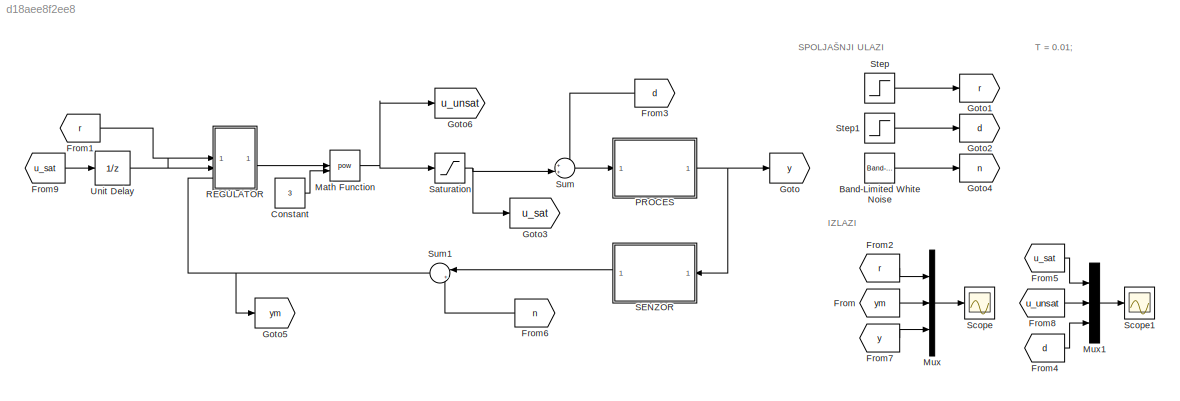
MODEL slx_d18aee8f2ee8
KIND model
CONFIG AbsTol = auto
CONFIG EnableMultiTasking = off
CONFIG FixedStep = auto
CONFIG MaxStep = auto
CONFIG MinStep = auto
CONFIG RelTol = 1e-3
CONFIG SampleTimeConstraint = Unconstrained
CONFIG SolverName = VariableStepAuto
CONFIG StartTime = 0.0
CONFIG StopTime = 40
BLOCK [Reference] Band-Limited White Noise  REF=simulink/Sources/Band-Limited
White Noise
  SourceBlock = simulink/Sources/Band-Limited\nWhite Noise
  SourceType = Band-Limited White Noise.
BLOCK [Constant] Constant
  Value = 3
BLOCK [From] From
  GotoTag = ym
BLOCK [From] From1
  GotoTag = r
BLOCK [From] From2
  GotoTag = r
BLOCK [From] From3
  GotoTag = d
BLOCK [From] From4
  GotoTag = d
BLOCK [From] From5
  GotoTag = u_sat
BLOCK [From] From6
  GotoTag = n
BLOCK [From] From7
  GotoTag = y
BLOCK [From] From8
  GotoTag = u_unsat
BLOCK [From] From9
  GotoTag = u_sat
BLOCK [Goto] Goto
  GotoTag = y
BLOCK [Goto] Goto1
  GotoTag = r
BLOCK [Goto] Goto2
  GotoTag = d
BLOCK [Goto] Goto3
  GotoTag = u_sat
BLOCK [Goto] Goto4
  GotoTag = n
BLOCK [Goto] Goto5
  GotoTag = ym
BLOCK [Goto] Goto6
  GotoTag = u_unsat
BLOCK [Math] Math Function
  Operator = pow
BLOCK [Mux] Mux
  DisplayOption = bar
  Inputs = 3
BLOCK [Mux] Mux1
  DisplayOption = bar
  Inputs = 3
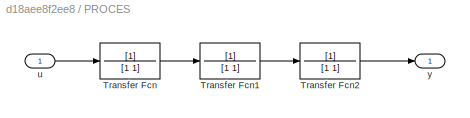
BLOCK [SubSystem] PROCES
BLOCK [TransferFcn] PROCES/Transfer Fcn
  Denominator = [1 1]
BLOCK [TransferFcn] PROCES/Transfer Fcn1
  Denominator = [1 1]
BLOCK [TransferFcn] PROCES/Transfer Fcn2
  Denominator = [1 1]
BLOCK [Inport] PROCES/u
BLOCK [Outport] PROCES/y
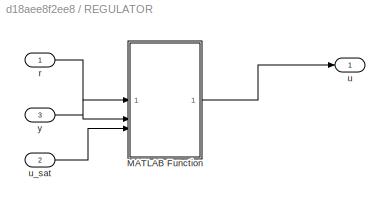
BLOCK [SubSystem] REGULATOR
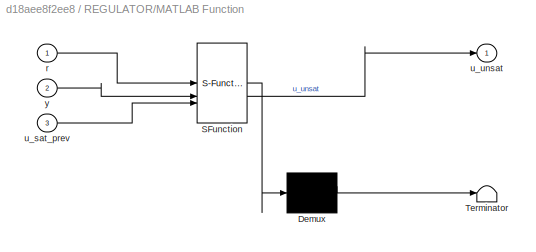
BLOCK [SubSystem] REGULATOR/MATLAB Function
  ErrorFcn = Stateflow.Translate.translate
  LibrarySourceBlock = simulink/User-Defined\nFunctions/MATLAB Function
  PermitHierarchicalResolution = ExplicitOnly
  SFBlockType = MATLAB Function
  TreatAsAtomicUnit = on
BLOCK [Demux] REGULATOR/MATLAB Function/ Demux 
  Outputs = 1
BLOCK [S-Function] REGULATOR/MATLAB Function/ SFunction 
  EnableBusSupport = on
  FunctionName = sf_sfun
  PortCounts = [3 2]
  SFcnIsStateOwnerBlock = off
  SFunctionDeploymentMode = off
  Tag = Stateflow S-Function 2
BLOCK [Terminator] REGULATOR/MATLAB Function/ Terminator 
BLOCK [Inport] REGULATOR/MATLAB Function/r
BLOCK [Inport] REGULATOR/MATLAB Function/u_sat_prev
  Port = 3
BLOCK [Outport] REGULATOR/MATLAB Function/u_unsat
BLOCK [Inport] REGULATOR/MATLAB Function/y
  Port = 2
BLOCK [Inport] REGULATOR/r
BLOCK [Outport] REGULATOR/u
BLOCK [Inport] REGULATOR/u_sat
  Port = 2
BLOCK [Inport] REGULATOR/y
  Port = 3
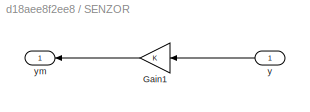
BLOCK [SubSystem] SENZOR
BLOCK [Gain] SENZOR/Gain1
BLOCK [Inport] SENZOR/y
BLOCK [Outport] SENZOR/ym
BLOCK [Saturate] Saturation
  LowerLimit = -1
  UpperLimit = 1
BLOCK [Scope] Scope
  Floating = off
  NumInputPorts = 1
  ScopeSpecificationString = Simulink.scopes.TimeScopeBlockCfg('CurrentConfiguration', extmgr.ConfigurationSet(extmgr.Configuration('Core','General UI',true),extmgr.Configuration('Core','Source UI',true),extmgr.Configuration('Sources','WiredSimulink',true),extmgr.Configuration('Visuals','Time Domain',true,'SerializedDisplays',{struct('MinYLimReal','-0.21883','MaxYLimReal','1.27241','YLabelReal','','MinYLimMag','0.00000','MaxY...<+1620ch>
BLOCK [Scope] Scope1
  Floating = off
  NumInputPorts = 1
  ScopeSpecificationString = Simulink.scopes.TimeScopeBlockCfg('CurrentConfiguration', extmgr.ConfigurationSet(extmgr.Configuration('Core','General UI',true),extmgr.Configuration('Core','Source UI',true),extmgr.Configuration('Sources','WiredSimulink',true,'DataLoggingVariableName','ScopeData1'),extmgr.Configuration('Visuals','Time Domain',true,'SerializedDisplays',{struct('MinYLimReal','-3.598','MaxYLimReal','3.60069','YLabel...<+1443ch>
BLOCK [Step] Step
  SampleTime = 0
BLOCK [Step] Step1
  SampleTime = 0
  Time = 10
BLOCK [Sum] Sum
  Inputs = ++|
BLOCK [Sum] Sum1
  Inputs = |++
BLOCK [UnitDelay] Unit Delay
  HasFrameUpgradeWarning = on
  SampleTime = -1
ANNOTATION (root): IZLAZI
ANNOTATION (root): SPOLJAŠNJI ULAZI
ANNOTATION (root): T = 0.01;
LINE Band-Limited White Noise:1 -> Goto4:1
LINE Constant:1 -> Math Function:2
LINE From1:1 -> REGULATOR:1
LINE From2:1 -> Mux:1
LINE From3:1 -> Sum:1
LINE From4:1 -> Mux1:3
LINE From5:1 -> Mux1:1
LINE From6:1 -> Sum1:2
LINE From7:1 -> Mux:3
LINE From8:1 -> Mux1:2
LINE From9:1 -> Unit Delay:1
LINE From:1 -> Mux:2
NET Math Function:1 -> Goto6:1, Saturation:1
LINE Mux1:1 -> Scope1:1
LINE Mux:1 -> Scope:1
LINE PROCES/Transfer Fcn1:1 -> PROCES/Transfer Fcn2:1
LINE PROCES/Transfer Fcn2:1 -> PROCES/y:1
LINE PROCES/Transfer Fcn:1 -> PROCES/Transfer Fcn1:1
LINE PROCES/u:1 -> PROCES/Transfer Fcn:1
NET PROCES:1 -> Goto:1, SENZOR:1
LINE REGULATOR/MATLAB Function:1 -> REGULATOR/u:1
LINE REGULATOR/r:1 -> REGULATOR/MATLAB Function:1
LINE REGULATOR/u_sat:1 -> REGULATOR/MATLAB Function:3
LINE REGULATOR/y:1 -> REGULATOR/MATLAB Function:2
LINE REGULATOR:1 -> Math Function:1
LINE SENZOR/Gain1:1 -> SENZOR/ym:1
LINE SENZOR/y:1 -> SENZOR/Gain1:1
LINE SENZOR:1 -> Sum1:1
NET Saturation:1 -> Goto3:1, Sum:2
LINE Step1:1 -> Goto2:1
LINE Step:1 -> Goto1:1
NET Sum1:1 -> Goto5:1, REGULATOR:3
LINE Sum:1 -> PROCES:1
LINE Unit Delay:1 -> REGULATOR:2
note: NET lines group one-source signal fan-out (src -> all destinations, sorted); 1:1 wires keep LINE
CHART REGULATOR/MATLAB Function states=1 transitions=1
  STATE_LABEL 'eML_blk_kernel()'
  STATE_LABEL 'SCRIPT:\nfunction u_unsat = PID_regulator(r, y, u_sat_prev)\n\nKp = 3.7;\nKi = 2.5;\nKd = 2.2;\nTs = 0.01;\n\nN = 10;\nKaw = 1/Kp;\n\npersistent I y_prev D_prev u_unsat_prev\nif isempty(I)\n    I = 0;\n    y_prev = 0;\n    D_prev = 0;\n    u_unsat_prev = 0;\nend\n\ne = r - y;\n\nif nargin >= 3 && ~isempty(u_sat_prev)\n    sat_error = u_sat_prev - u_unsat_prev;\n    I = I + Kaw * sat_error;\nend\n\nD_unfilt = -(y - y_prev) ...<+213ch>'
CHART  states=0 transitions=0
